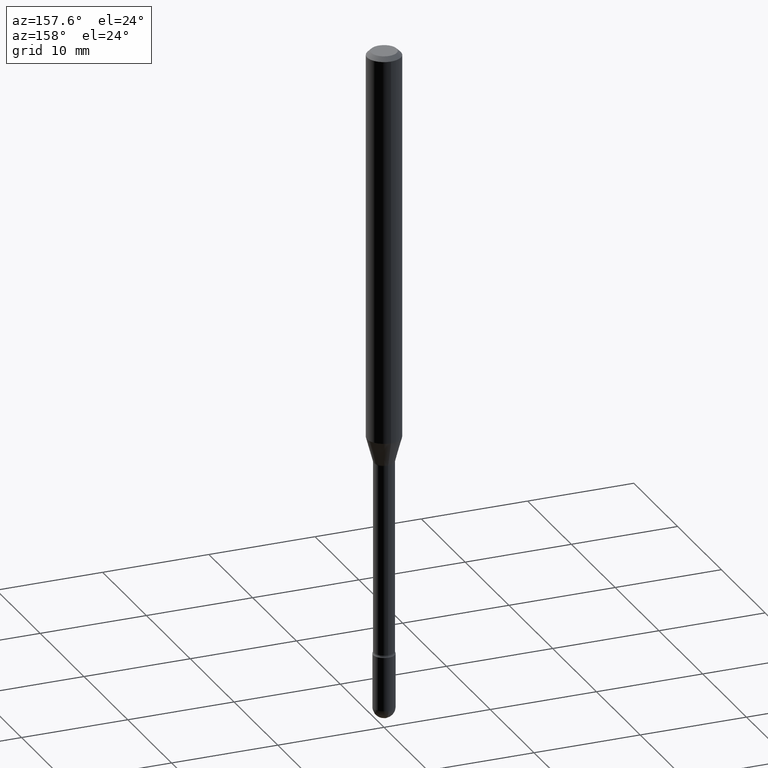
[diagram: clean part render]
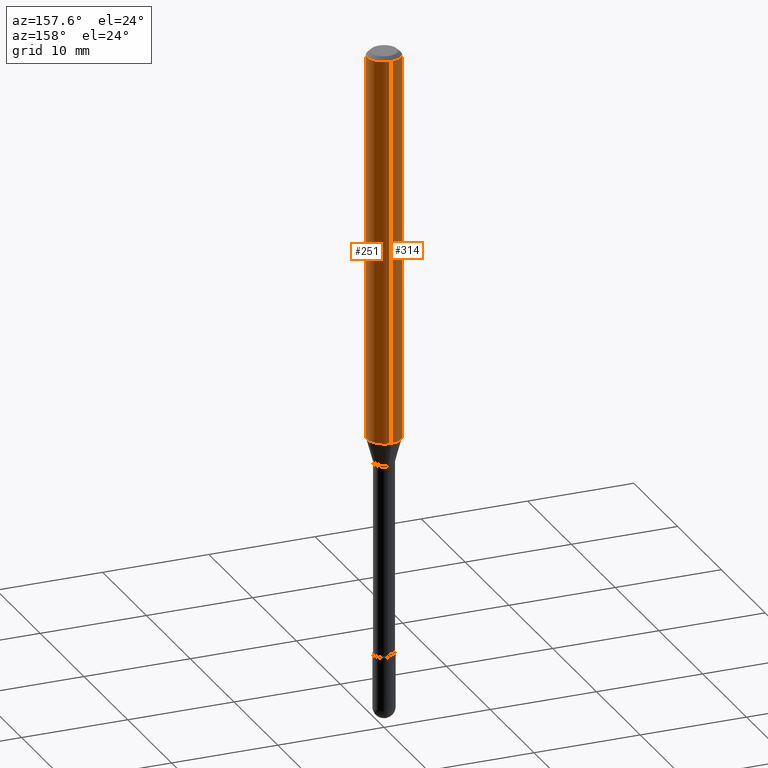
[diagram: same view with one multi-face feature highlighted, each face labeled with its STEP entity id]
A machine part, auxiliary view. The highlighted faces form ONE feature: a constant-radius fillet chain: 2 tangent blend faces with common blend radius 1.5875 mm. The faces share edges in the B-rep.
Their STEP definitions:
[1] entity #251 (Cylinder):
#6 = LINE ( 'NONE', #319, #291 ) ;
#20 = CARTESIAN_POINT ( 'NONE',  ( -4.364351673553565651E-16, -0.06250000000000509315, -1.447071934891535072 ) ) ;
#21 = VERTEX_POINT ( 'NONE', #365 ) ;
#34 = CARTESIAN_POINT ( 'NONE',  ( 3.668173990040397856E-31, -5.237263851875655642E-17, -0.01500000000000008271 ) ) ;
#40 = CYLINDRICAL_SURFACE ( 'NONE', #81, 0.06250000000000000000 ) ;
#42 = DIRECTION ( 'NONE',  ( -2.445449326693585352E-29, 3.491509234583750788E-15, 1.000000000000000000 ) ) ;
#45 = DIRECTION ( 'NONE',  ( -6.982962677686265922E-15, -1.000000000000000000, 3.491509234583750788E-15 ) ) ;
#49 = DIRECTION ( 'NONE',  ( -2.445449326693585352E-29, 3.491509234583750788E-15, 1.000000000000000000 ) ) ;
#60 = CARTESIAN_POINT ( 'NONE',  ( 4.440892098500977205E-16, 0.06249999999999491379, -1.447071934891535516 ) ) ;
#70 = ORIENTED_EDGE ( 'NONE', *, *, #127, .T. ) ;
#81 = AXIS2_PLACEMENT_3D ( 'NONE', #214, #397, #45 ) ;
#104 = CIRCLE ( 'NONE', #171, 0.06250000000000000000 ) ;
#114 = ORIENTED_EDGE ( 'NONE', *, *, #298, .T. ) ;
#127 = EDGE_CURVE ( 'NONE', #379, #290, #347, .T. ) ;
#171 = AXIS2_PLACEMENT_3D ( 'NONE', #34, #431, #435 ) ;
#181 = DIRECTION ( 'NONE',  ( -6.982962677686265922E-15, -1.000000000000000000, 4.370956789862821150E-15 ) ) ;
#206 = EDGE_CURVE ( 'NONE', #395, #21, #6, .T. ) ;
#214 = CARTESIAN_POINT ( 'NONE',  ( -1.169113584055446105E-44, 1.669184350826100908E-30, 4.780733988912460139E-16 ) ) ;
#221 = VECTOR ( 'NONE', #49, 39.37007874015748143 ) ;
#234 = ORIENTED_EDGE ( 'NONE', *, *, #556, .F. ) ;
#251 = ADVANCED_FACE ( 'NONE', ( #356 ), #40, .T. ) ;
#281 = CIRCLE ( 'NONE', #521, 0.06250000000000000000 ) ;
#290 = VERTEX_POINT ( 'NONE', #458 ) ;
#291 = VECTOR ( 'NONE', #42, 39.37007874015748143 ) ;
#298 = EDGE_CURVE ( 'NONE', #395, #379, #281, .T. ) ;
#308 = CARTESIAN_POINT ( 'NONE',  ( 4.440892098500625669E-16, 0.06250000000000000000, 2.598540717297616143E-16 ) ) ;
#319 = CARTESIAN_POINT ( 'NONE',  ( -4.364351673553916201E-16, -0.06250000000000000000, 6.962927260527304628E-16 ) ) ;
#324 = CARTESIAN_POINT ( 'NONE',  ( 3.538741088857687893E-29, -5.052465023780772029E-15, -1.447071934891535294 ) ) ;
#345 = ORIENTED_EDGE ( 'NONE', *, *, #206, .F. ) ;
#347 = LINE ( 'NONE', #308, #221 ) ;
#356 = FACE_OUTER_BOUND ( 'NONE', #465, .T. ) ;
#365 = CARTESIAN_POINT ( 'NONE',  ( -4.364351673553912750E-16, -0.06250000000000005551, -0.01499999999999986587 ) ) ;
#379 = VERTEX_POINT ( 'NONE', #60 ) ;
#395 = VERTEX_POINT ( 'NONE', #20 ) ;
#397 = DIRECTION ( 'NONE',  ( -2.445449326693585071E-29, 3.491509234583751183E-15, 1.000000000000000000 ) ) ;
#431 = DIRECTION ( 'NONE',  ( -2.445449326693585071E-29, 3.491509234583751183E-15, 1.000000000000000000 ) ) ;
#435 = DIRECTION ( 'NONE',  ( -6.982962677686265922E-15, -1.000000000000000000, 3.483106191921935554E-15 ) ) ;
#458 = CARTESIAN_POINT ( 'NONE',  ( 4.440892098500982135E-16, 0.06249999999999995143, -0.01500000000000030129 ) ) ;
#465 = EDGE_LOOP ( 'NONE', ( #114, #70, #234, #345 ) ) ;
#521 = AXIS2_PLACEMENT_3D ( 'NONE', #324, #539, #181 ) ;
#539 = DIRECTION ( 'NONE',  ( -2.445449326693585071E-29, 3.491509234583751183E-15, 1.000000000000000000 ) ) ;
#556 = EDGE_CURVE ( 'NONE', #21, #290, #104, .T. ) ;
[2] entity #314 (Cylinder):
#6 = LINE ( 'NONE', #319, #291 ) ;
#20 = CARTESIAN_POINT ( 'NONE',  ( -4.364351673553565651E-16, -0.06250000000000509315, -1.447071934891535072 ) ) ;
#21 = VERTEX_POINT ( 'NONE', #365 ) ;
#23 = ORIENTED_EDGE ( 'NONE', *, *, #98, .F. ) ;
#35 = ORIENTED_EDGE ( 'NONE', *, *, #127, .F. ) ;
#37 = AXIS2_PLACEMENT_3D ( 'NONE', #53, #230, #107 ) ;
#42 = DIRECTION ( 'NONE',  ( -2.445449326693585352E-29, 3.491509234583750788E-15, 1.000000000000000000 ) ) ;
#49 = DIRECTION ( 'NONE',  ( -2.445449326693585352E-29, 3.491509234583750788E-15, 1.000000000000000000 ) ) ;
#53 = CARTESIAN_POINT ( 'NONE',  ( -1.169113584055446105E-44, 1.669184350826100908E-30, 4.780733988912460139E-16 ) ) ;
#54 = ORIENTED_EDGE ( 'NONE', *, *, #213, .T. ) ;
#60 = CARTESIAN_POINT ( 'NONE',  ( 4.440892098500977205E-16, 0.06249999999999491379, -1.447071934891535516 ) ) ;
#98 = EDGE_CURVE ( 'NONE', #290, #21, #333, .T. ) ;
#107 = DIRECTION ( 'NONE',  ( -6.982962677686265922E-15, -1.000000000000000000, 3.491509234583750788E-15 ) ) ;
#127 = EDGE_CURVE ( 'NONE', #379, #290, #347, .T. ) ;
#129 = DIRECTION ( 'NONE',  ( -6.982962677686265922E-15, -1.000000000000000000, 4.370956789862821150E-15 ) ) ;
#132 = AXIS2_PLACEMENT_3D ( 'NONE', #173, #500, #129 ) ;
#168 = EDGE_LOOP ( 'NONE', ( #35, #54, #282, #23 ) ) ;
#173 = CARTESIAN_POINT ( 'NONE',  ( 3.538741088857687893E-29, -5.052465023780772029E-15, -1.447071934891535294 ) ) ;
#206 = EDGE_CURVE ( 'NONE', #395, #21, #6, .T. ) ;
#213 = EDGE_CURVE ( 'NONE', #379, #395, #267, .T. ) ;
#221 = VECTOR ( 'NONE', #49, 39.37007874015748143 ) ;
#230 = DIRECTION ( 'NONE',  ( -2.445449326693585071E-29, 3.491509234583751183E-15, 1.000000000000000000 ) ) ;
#267 = CIRCLE ( 'NONE', #132, 0.06250000000000000000 ) ;
#275 = AXIS2_PLACEMENT_3D ( 'NONE', #387, #416, #358 ) ;
#282 = ORIENTED_EDGE ( 'NONE', *, *, #206, .T. ) ;
#290 = VERTEX_POINT ( 'NONE', #458 ) ;
#291 = VECTOR ( 'NONE', #42, 39.37007874015748143 ) ;
#308 = CARTESIAN_POINT ( 'NONE',  ( 4.440892098500625669E-16, 0.06250000000000000000, 2.598540717297616143E-16 ) ) ;
#314 = ADVANCED_FACE ( 'NONE', ( #407 ), #503, .T. ) ;
#319 = CARTESIAN_POINT ( 'NONE',  ( -4.364351673553916201E-16, -0.06250000000000000000, 6.962927260527304628E-16 ) ) ;
#333 = CIRCLE ( 'NONE', #275, 0.06250000000000000000 ) ;
#347 = LINE ( 'NONE', #308, #221 ) ;
#358 = DIRECTION ( 'NONE',  ( -6.982962677686265922E-15, -1.000000000000000000, 3.483106191921935554E-15 ) ) ;
#365 = CARTESIAN_POINT ( 'NONE',  ( -4.364351673553912750E-16, -0.06250000000000005551, -0.01499999999999986587 ) ) ;
#379 = VERTEX_POINT ( 'NONE', #60 ) ;
#387 = CARTESIAN_POINT ( 'NONE',  ( 3.668173990040397856E-31, -5.237263851875655642E-17, -0.01500000000000008271 ) ) ;
#395 = VERTEX_POINT ( 'NONE', #20 ) ;
#407 = FACE_OUTER_BOUND ( 'NONE', #168, .T. ) ;
#416 = DIRECTION ( 'NONE',  ( -2.445449326693585071E-29, 3.491509234583751183E-15, 1.000000000000000000 ) ) ;
#458 = CARTESIAN_POINT ( 'NONE',  ( 4.440892098500982135E-16, 0.06249999999999995143, -0.01500000000000030129 ) ) ;
#500 = DIRECTION ( 'NONE',  ( -2.445449326693585071E-29, 3.491509234583751183E-15, 1.000000000000000000 ) ) ;
#503 = CYLINDRICAL_SURFACE ( 'NONE', #37, 0.06250000000000000000 ) ;